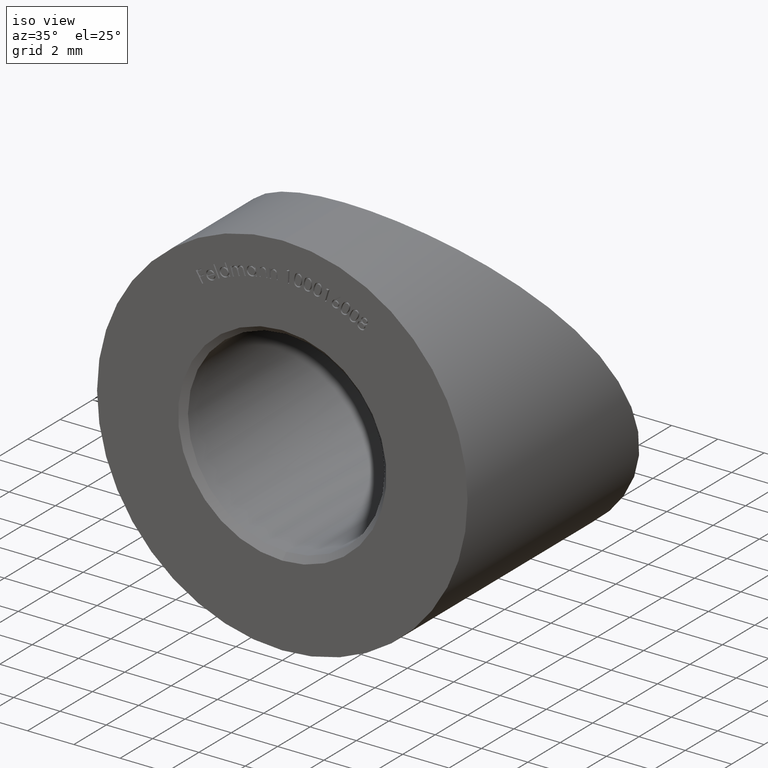
[diagram: clean part render]
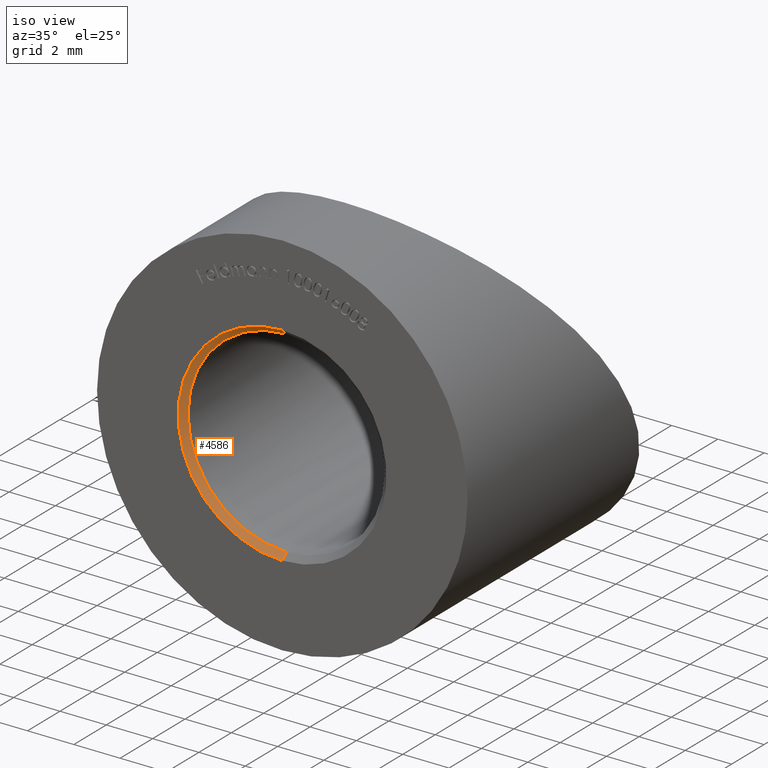
[diagram: same view with one face highlighted and labeled with its STEP entity id]
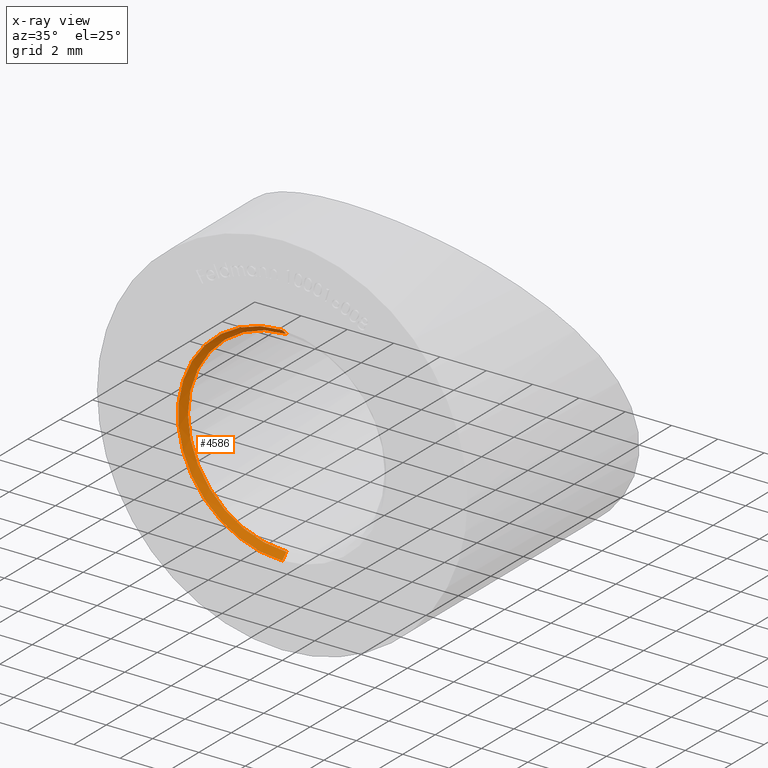
[diagram: x-ray of the same camera — body ghosted, the highlighted face saturated]
A machine part, iso view. The second image highlights one B-rep face of the part: STEP entity #4586.
The next image is the same camera in x-ray: the body ghosted, the highlighted face saturated — about 0% of this face is hidden behind the body in this view.
In plain terms, the highlighted conical surface has half-angle 45 deg.
Its self-contained STEP definition (entity closure, byte-faithful):
#235 = VERTEX_POINT ( 'NONE', #2610 ) ;
#974 = DIRECTION ( 'NONE',  ( 0.0000000000000000000, 0.0000000000000000000, -1.000000000000000000 ) ) ;
#1308 = VERTEX_POINT ( 'NONE', #8598 ) ;
#1445 = AXIS2_PLACEMENT_3D ( 'NONE', #11821, #4177, #974 ) ;
#1508 = DIRECTION ( 'NONE',  ( 0.0000000000000000000, 1.000000000000000000, 0.0000000000000000000 ) ) ;
#1852 = CARTESIAN_POINT ( 'NONE',  ( 5.510910596163114200E-016, 0.0000000000000000000, 4.500000000000020400 ) ) ;
#2428 = CIRCLE ( 'NONE', #10842, 4.500000000000020400 ) ;
#2580 = ORIENTED_EDGE ( 'NONE', *, *, #10532, .F. ) ;
#2610 = CARTESIAN_POINT ( 'NONE',  ( 5.204748896376249700E-016, 0.2500000000000175400, 4.250000000000000000 ) ) ;
#2782 = VECTOR ( 'NONE', #3507, 1000.000000000000000 ) ;
#3507 = DIRECTION ( 'NONE',  ( 0.0000000000000000000, -0.7071067811865439100, -0.7071067811865512400 ) ) ;
#4177 = DIRECTION ( 'NONE',  ( 0.0000000000000000000, -1.000000000000000000, 0.0000000000000000000 ) ) ;
#4208 = EDGE_CURVE ( 'NONE', #235, #9622, #10446, .T. ) ;
#4265 = CIRCLE ( 'NONE', #6089, 4.250000000000000000 ) ;
#4586 = ADVANCED_FACE ( 'NONE', ( #11948 ), #12666, .F. ) ;
#4637 = EDGE_LOOP ( 'NONE', ( #9791, #10541, #2580, #10674 ) ) ;
#4667 = CARTESIAN_POINT ( 'NONE',  ( 0.0000000000000000000, 0.0000000000000000000, 0.0000000000000000000 ) ) ;
#4721 = VECTOR ( 'NONE', #12914, 1000.000000000000000 ) ;
#6089 = AXIS2_PLACEMENT_3D ( 'NONE', #11872, #10689, #14102 ) ;
#6302 = VERTEX_POINT ( 'NONE', #10555 ) ;
#7284 = CARTESIAN_POINT ( 'NONE',  ( 5.204748896376250700E-016, 0.2500000000000175400, 4.250000000000000000 ) ) ;
#8598 = CARTESIAN_POINT ( 'NONE',  ( 0.0000000000000000000, 0.0000000000000000000, -4.500000000000020400 ) ) ;
#9622 = VERTEX_POINT ( 'NONE', #1852 ) ;
#9791 = ORIENTED_EDGE ( 'NONE', *, *, #13478, .F. ) ;
#10191 = EDGE_CURVE ( 'NONE', #6302, #1308, #10560, .T. ) ;
#10338 = DIRECTION ( 'NONE',  ( 0.0000000000000000000, 0.0000000000000000000, 1.000000000000000000 ) ) ;
#10446 = LINE ( 'NONE', #7284, #4721 ) ;
#10532 = EDGE_CURVE ( 'NONE', #1308, #9622, #2428, .T. ) ;
#10541 = ORIENTED_EDGE ( 'NONE', *, *, #4208, .T. ) ;
#10555 = CARTESIAN_POINT ( 'NONE',  ( 0.0000000000000000000, 0.2500000000000175400, -4.250000000000000000 ) ) ;
#10560 = LINE ( 'NONE', #11459, #2782 ) ;
#10674 = ORIENTED_EDGE ( 'NONE', *, *, #10191, .F. ) ;
#10689 = DIRECTION ( 'NONE',  ( 0.0000000000000000000, -1.000000000000000000, 0.0000000000000000000 ) ) ;
#10842 = AXIS2_PLACEMENT_3D ( 'NONE', #4667, #1508, #10338 ) ;
#11459 = CARTESIAN_POINT ( 'NONE',  ( 0.0000000000000000000, 0.2500000000000175400, -4.250000000000000000 ) ) ;
#11821 = CARTESIAN_POINT ( 'NONE',  ( 0.0000000000000000000, 0.2500000000000175400, 0.0000000000000000000 ) ) ;
#11872 = CARTESIAN_POINT ( 'NONE',  ( 0.0000000000000000000, 0.2500000000000175400, 0.0000000000000000000 ) ) ;
#11948 = FACE_OUTER_BOUND ( 'NONE', #4637, .T. ) ;
#12666 = CONICAL_SURFACE ( 'NONE', #1445, 4.250000000000000000, 0.7853981633974533900 ) ;
#12914 = DIRECTION ( 'NONE',  ( 8.659560562354978500E-017, -0.7071067811865439100, 0.7071067811865512400 ) ) ;
#13478 = EDGE_CURVE ( 'NONE', #235, #6302, #4265, .T. ) ;
#14102 = DIRECTION ( 'NONE',  ( 0.0000000000000000000, 0.0000000000000000000, 1.000000000000000000 ) ) ;